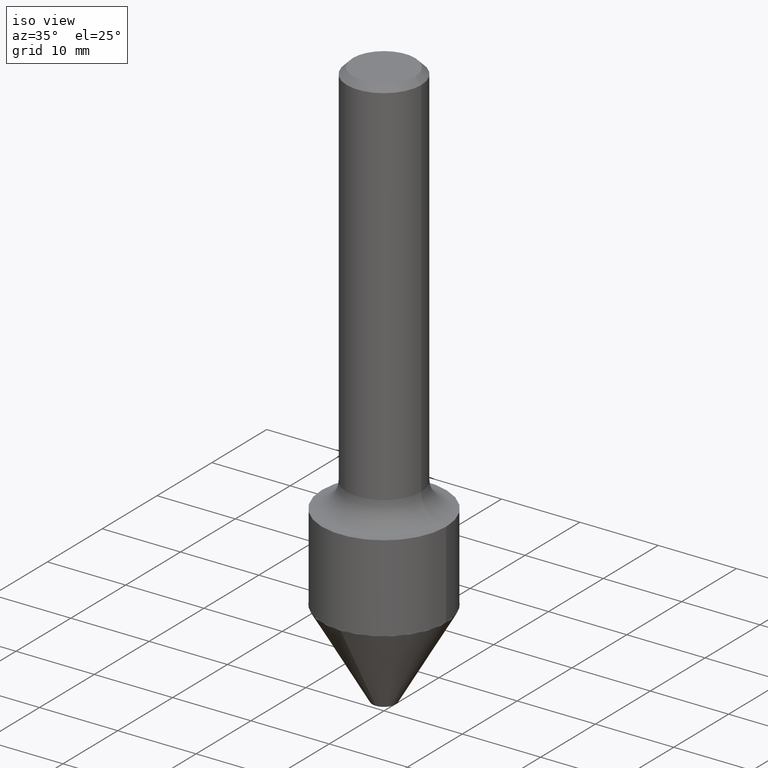
[diagram: clean part render]
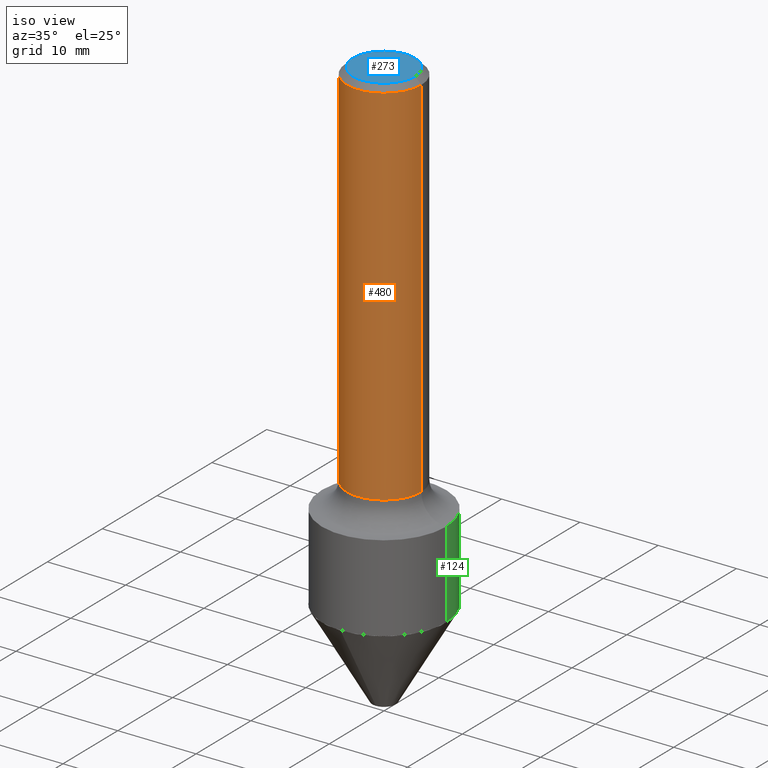
[diagram: same view with three faces highlighted in distinct colors, each labeled with its STEP entity id]
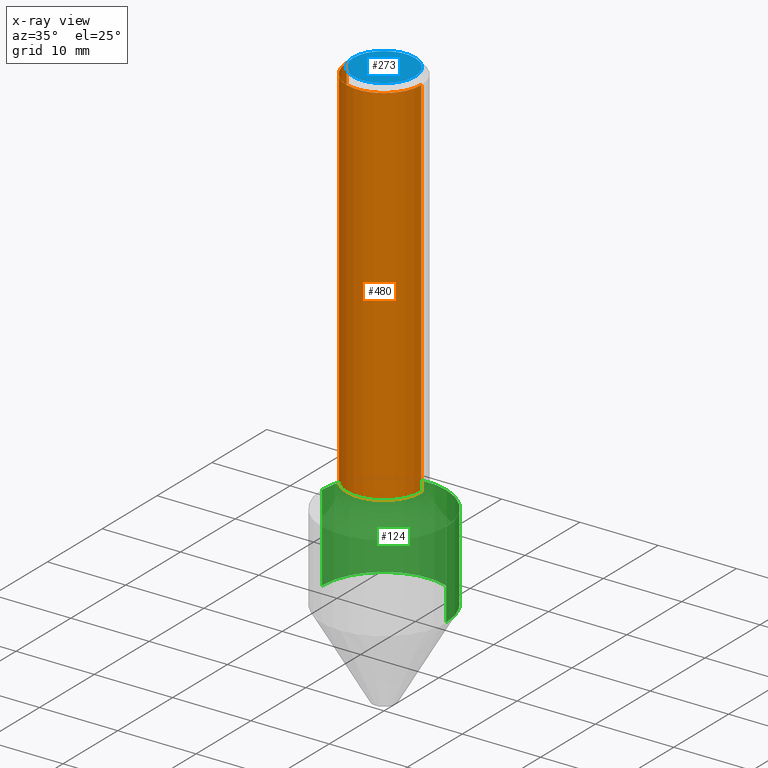
[diagram: x-ray of the same camera — body ghosted, the three highlighted faces saturated]
A machine part, iso view with three faces highlighted in distinct colors.
The next image is the same camera in x-ray (body ghosted, the three faces saturated) — at least one of them is partly hidden behind the body in this view.
Their STEP definitions:

[orange] entity #480 — the highlighted cylindrical surface (partial cylindrical patch) has radius 4.7625 mm, axis along (-0, 0, 1).
#4 = EDGE_CURVE ( 'NONE', #167, #477, #267, .T. ) ;
#6 = CYLINDRICAL_SURFACE ( 'NONE', #380, 0.1875000000000001110 ) ;
#10 = CARTESIAN_POINT ( 'NONE',  ( 7.629862675297681829E-31, -1.089342177719069380E-16, -0.03120000000000022755 ) ) ;
#47 = VERTEX_POINT ( 'NONE', #186 ) ;
#54 = EDGE_CURVE ( 'NONE', #47, #96, #102, .T. ) ;
#59 = DIRECTION ( 'NONE',  ( -2.445468806185136877E-29, 3.491481338843145188E-15, 1.000000000000000000 ) ) ;
#96 = VERTEX_POINT ( 'NONE', #377 ) ;
#102 = LINE ( 'NONE', #187, #168 ) ;
#126 = DIRECTION ( 'NONE',  ( 1.000000000000000000, -6.982962677686265922E-15, 0.000000000000000000 ) ) ;
#135 = EDGE_LOOP ( 'NONE', ( #260, #485, #252, #196 ) ) ;
#142 = CARTESIAN_POINT ( 'NONE',  ( -0.1875000000000001110, 1.332267629550188637E-15, -9.223003294227953596E-30 ) ) ;
#167 = VERTEX_POINT ( 'NONE', #388 ) ;
#168 = VECTOR ( 'NONE', #420, 39.37007874015748143 ) ;
#186 = CARTESIAN_POINT ( 'NONE',  ( 0.1875000000000002498, -7.873290419091291906E-15, -1.880000000000000338 ) ) ;
#187 = CARTESIAN_POINT ( 'NONE',  ( 0.1875000000000001110, -1.309305502066175797E-15, 9.142831454617385217E-30 ) ) ;
#195 = CARTESIAN_POINT ( 'NONE',  ( 4.597481355628058013E-29, -6.563984917025115320E-15, -1.880000000000000338 ) ) ;
#196 = ORIENTED_EDGE ( 'NONE', *, *, #401, .F. ) ;
#203 = DIRECTION ( 'NONE',  ( -2.445468806185136597E-29, 3.491481338843145583E-15, 1.000000000000000000 ) ) ;
#233 = CIRCLE ( 'NONE', #406, 0.1875000000000000278 ) ;
#246 = DIRECTION ( 'NONE',  ( 1.000000000000000000, -6.982962677686269077E-15, 0.000000000000000000 ) ) ;
#248 = CARTESIAN_POINT ( 'NONE',  ( 0.000000000000000000, 0.000000000000000000, 0.000000000000000000 ) ) ;
#252 = ORIENTED_EDGE ( 'NONE', *, *, #54, .T. ) ;
#260 = ORIENTED_EDGE ( 'NONE', *, *, #4, .F. ) ;
#261 = EDGE_CURVE ( 'NONE', #167, #47, #306, .T. ) ;
#267 = LINE ( 'NONE', #142, #299 ) ;
#299 = VECTOR ( 'NONE', #59, 39.37007874015748143 ) ;
#306 = CIRCLE ( 'NONE', #479, 0.1875000000000002498 ) ;
#374 = FACE_OUTER_BOUND ( 'NONE', #135, .T. ) ;
#377 = CARTESIAN_POINT ( 'NONE',  ( 0.1875000000000000278, -1.395277592354069315E-15, -0.03120000000000022755 ) ) ;
#380 = AXIS2_PLACEMENT_3D ( 'NONE', #248, #203, #404 ) ;
#388 = CARTESIAN_POINT ( 'NONE',  ( -0.1875000000000002498, -5.005845661302559902E-15, -1.880000000000000338 ) ) ;
#397 = DIRECTION ( 'NONE',  ( -2.445468806185136597E-29, 3.491481338843145583E-15, 1.000000000000000000 ) ) ;
#401 = EDGE_CURVE ( 'NONE', #477, #96, #233, .T. ) ;
#404 = DIRECTION ( 'NONE',  ( 1.000000000000000000, -6.982962677686266711E-15, 4.876176775795935793E-29 ) ) ;
#406 = AXIS2_PLACEMENT_3D ( 'NONE', #10, #443, #126 ) ;
#420 = DIRECTION ( 'NONE',  ( -2.445468806185136877E-29, 3.491481338843145188E-15, 1.000000000000000000 ) ) ;
#443 = DIRECTION ( 'NONE',  ( -2.445468806185136597E-29, 3.491481338843145583E-15, 1.000000000000000000 ) ) ;
#449 = CARTESIAN_POINT ( 'NONE',  ( -0.1875000000000000278, 1.200371284294268058E-15, -0.03120000000000022755 ) ) ;
#477 = VERTEX_POINT ( 'NONE', #449 ) ;
#479 = AXIS2_PLACEMENT_3D ( 'NONE', #195, #397, #246 ) ;
#480 = ADVANCED_FACE ( 'NONE', ( #374 ), #6, .T. ) ;
#485 = ORIENTED_EDGE ( 'NONE', *, *, #261, .T. ) ;

[blue] entity #273 — the highlighted planar face has unit normal (0, -0, -1).
#13 = CARTESIAN_POINT ( 'NONE',  ( -1.871772216193331159E-46, 2.672394653685611172E-32, 7.654042494670965249E-18 ) ) ;
#72 = DIRECTION ( 'NONE',  ( 1.000000000000000000, -6.982962677686266711E-15, 4.876046809215620980E-29 ) ) ;
#97 = AXIS2_PLACEMENT_3D ( 'NONE', #324, #239, #72 ) ;
#122 = DIRECTION ( 'NONE',  ( -2.445468806185136597E-29, 3.491481338843145583E-15, 1.000000000000000000 ) ) ;
#154 = CARTESIAN_POINT ( 'NONE',  ( 1.091437066522363671E-15, 0.1563000000000000500, -5.418915120138483345E-16 ) ) ;
#156 = AXIS2_PLACEMENT_3D ( 'NONE', #13, #122, #402 ) ;
#180 = CIRCLE ( 'NONE', #97, 0.1563000000000000500 ) ;
#184 = EDGE_CURVE ( 'NONE', #410, #290, #180, .T. ) ;
#239 = DIRECTION ( 'NONE',  ( -2.445468806185136597E-29, 3.491481338843145583E-15, 1.000000000000000000 ) ) ;
#265 = AXIS2_PLACEMENT_3D ( 'NONE', #154, #510, #319 ) ;
#273 = ADVANCED_FACE ( 'NONE', ( #517 ), #353, .F. ) ;
#290 = VERTEX_POINT ( 'NONE', #394 ) ;
#315 = ORIENTED_EDGE ( 'NONE', *, *, #184, .T. ) ;
#319 = DIRECTION ( 'NONE',  ( -1.000000000000000000, 6.982962677686265922E-15, -4.876176775795935793E-29 ) ) ;
#324 = CARTESIAN_POINT ( 'NONE',  ( -1.871772216193331159E-46, 2.672394653685611172E-32, 7.654042494670965249E-18 ) ) ;
#349 = ORIENTED_EDGE ( 'NONE', *, *, #384, .T. ) ;
#353 = PLANE ( 'NONE',  #265 ) ;
#384 = EDGE_CURVE ( 'NONE', #290, #410, #478, .T. ) ;
#394 = CARTESIAN_POINT ( 'NONE',  ( -0.1563000000000000500, 1.145904175408315963E-15, 7.654042494663141351E-18 ) ) ;
#402 = DIRECTION ( 'NONE',  ( 1.000000000000000000, -6.982962677686266711E-15, 4.876046809215620980E-29 ) ) ;
#410 = VERTEX_POINT ( 'NONE', #476 ) ;
#467 = EDGE_LOOP ( 'NONE', ( #349, #315 ) ) ;
#476 = CARTESIAN_POINT ( 'NONE',  ( 0.1563000000000000500, -1.233786714702880152E-15, 7.654042494679095754E-18 ) ) ;
#478 = CIRCLE ( 'NONE', #156, 0.1563000000000000500 ) ;
#510 = DIRECTION ( 'NONE',  ( 2.438088387897960049E-29, -3.491481338843145188E-15, -1.000000000000000000 ) ) ;
#517 = FACE_OUTER_BOUND ( 'NONE', #467, .T. ) ;

[green] entity #124 — the highlighted cylindrical surface (partial cylindrical patch) has radius 7.9375 mm, axis along (-0, 0, 1).
#17 = CYLINDRICAL_SURFACE ( 'NONE', #213, 0.3125000000000000000 ) ;
#20 = VECTOR ( 'NONE', #169, 39.37007874015748143 ) ;
#26 = DIRECTION ( 'NONE',  ( 1.000000000000000000, -6.982962677686269077E-15, 0.000000000000000000 ) ) ;
#48 = AXIS2_PLACEMENT_3D ( 'NONE', #178, #340, #26 ) ;
#51 = DIRECTION ( 'NONE',  ( 1.000000000000000000, -6.982962677686265133E-15, 0.000000000000000000 ) ) ;
#66 = DIRECTION ( 'NONE',  ( 1.000000000000000000, -6.982962677686266711E-15, 4.876176775795936353E-29 ) ) ;
#77 = ORIENTED_EDGE ( 'NONE', *, *, #350, .T. ) ;
#85 = DIRECTION ( 'NONE',  ( -2.445468806185136597E-29, 3.491481338843145583E-15, 1.000000000000000000 ) ) ;
#120 = CARTESIAN_POINT ( 'NONE',  ( 0.3125000000000000000, -1.070112886241384003E-14, -2.439925120281329907 ) ) ;
#124 = ADVANCED_FACE ( 'NONE', ( #342 ), #17, .T. ) ;
#129 = ORIENTED_EDGE ( 'NONE', *, *, #358, .F. ) ;
#141 = EDGE_CURVE ( 'NONE', #362, #398, #237, .T. ) ;
#163 = CARTESIAN_POINT ( 'NONE',  ( -0.3125000000000000000, -4.779974035130193909E-15, -2.004999999999999893 ) ) ;
#166 = CARTESIAN_POINT ( 'NONE',  ( 0.3125000000000000000, -2.182175836776958347E-15, 1.523805242436230075E-29 ) ) ;
#169 = DIRECTION ( 'NONE',  ( -2.445468806185136877E-29, 3.491481338843145188E-15, 1.000000000000000000 ) ) ;
#178 = CARTESIAN_POINT ( 'NONE',  ( 4.903164956401198966E-29, -7.000420084380507779E-15, -2.004999999999999893 ) ) ;
#191 = LINE ( 'NONE', #357, #472 ) ;
#192 = ORIENTED_EDGE ( 'NONE', *, *, #141, .F. ) ;
#202 = EDGE_CURVE ( 'NONE', #493, #398, #191, .T. ) ;
#211 = LINE ( 'NONE', #166, #20 ) ;
#213 = AXIS2_PLACEMENT_3D ( 'NONE', #502, #386, #66 ) ;
#237 = CIRCLE ( 'NONE', #48, 0.3125000000000000000 ) ;
#330 = CARTESIAN_POINT ( 'NONE',  ( 5.966760771075509629E-29, -8.518953025636881685E-15, -2.439925120281329907 ) ) ;
#339 = CIRCLE ( 'NONE', #356, 0.3125000000000000000 ) ;
#340 = DIRECTION ( 'NONE',  ( -2.445468806185136597E-29, 3.491481338843145583E-15, 1.000000000000000000 ) ) ;
#342 = FACE_OUTER_BOUND ( 'NONE', #414, .T. ) ;
#350 = EDGE_CURVE ( 'NONE', #403, #493, #339, .T. ) ;
#356 = AXIS2_PLACEMENT_3D ( 'NONE', #330, #85, #51 ) ;
#357 = CARTESIAN_POINT ( 'NONE',  ( -0.3125000000000000000, 2.220446049250313081E-15, -1.537167215704658232E-29 ) ) ;
#358 = EDGE_CURVE ( 'NONE', #403, #362, #211, .T. ) ;
#362 = VERTEX_POINT ( 'NONE', #481 ) ;
#385 = CARTESIAN_POINT ( 'NONE',  ( -0.3125000000000000000, -5.539240505758381256E-15, -2.439925120281329907 ) ) ;
#386 = DIRECTION ( 'NONE',  ( -2.445468806185136597E-29, 3.491481338843145583E-15, 1.000000000000000000 ) ) ;
#398 = VERTEX_POINT ( 'NONE', #163 ) ;
#403 = VERTEX_POINT ( 'NONE', #120 ) ;
#414 = EDGE_LOOP ( 'NONE', ( #77, #450, #192, #129 ) ) ;
#450 = ORIENTED_EDGE ( 'NONE', *, *, #202, .T. ) ;
#472 = VECTOR ( 'NONE', #512, 39.37007874015748143 ) ;
#481 = CARTESIAN_POINT ( 'NONE',  ( 0.3125000000000000000, -9.182595921157466915E-15, -2.004999999999999893 ) ) ;
#493 = VERTEX_POINT ( 'NONE', #385 ) ;
#502 = CARTESIAN_POINT ( 'NONE',  ( 0.000000000000000000, 0.000000000000000000, 0.000000000000000000 ) ) ;
#512 = DIRECTION ( 'NONE',  ( -2.445468806185136877E-29, 3.491481338843145188E-15, 1.000000000000000000 ) ) ;